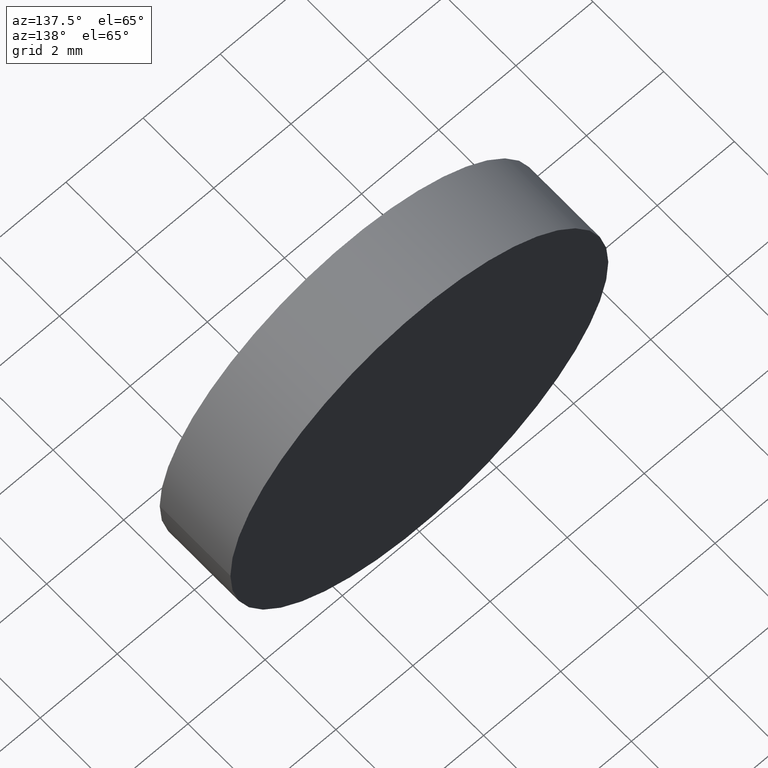
[diagram: clean part render]
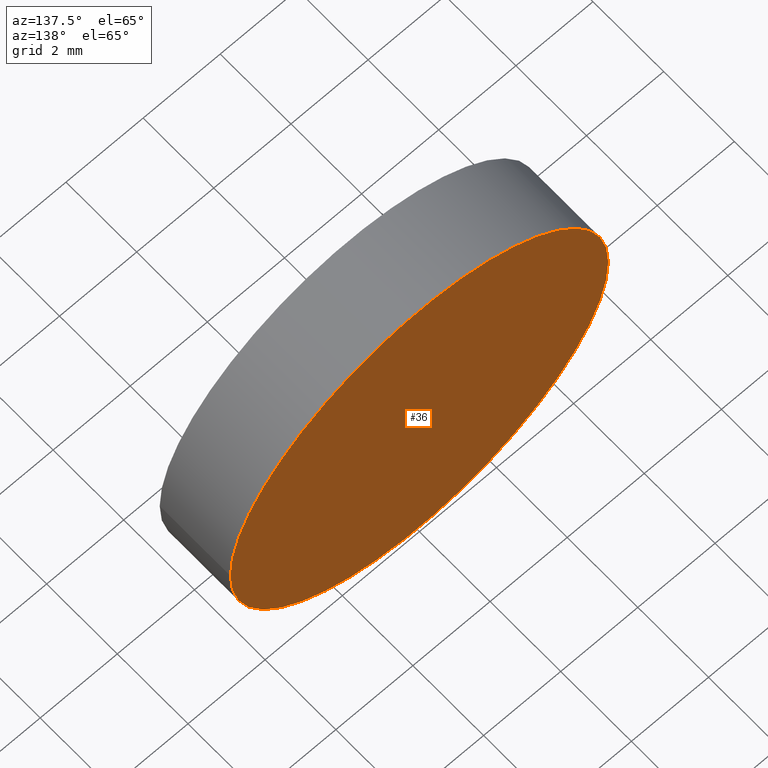
[diagram: same view with one face highlighted and labeled with its STEP entity id]
A machine part, auxiliary view. The second image highlights one B-rep face of the part: STEP entity #36.
In plain terms, the highlighted planar face has unit normal (-0, 1, 0).
Its self-contained STEP definition (entity closure, byte-faithful):
#17=FACE_OUTER_BOUND('',#20,.T.);
#20=EDGE_LOOP('',(#30));
#24=CIRCLE('',#42,4.9);
#26=VERTEX_POINT('',#60);
#28=EDGE_CURVE('',#26,#26,#24,.T.);
#30=ORIENTED_EDGE('',*,*,#28,.F.);
#34=PLANE('',#41);
#36=ADVANCED_FACE('',(#17),#34,.T.);
#41=AXIS2_PLACEMENT_3D('',#59,#48,#49);
#42=AXIS2_PLACEMENT_3D('',#61,#50,#51);
#48=DIRECTION('center_axis',(-3.06161699786838E-16,1.,0.));
#49=DIRECTION('ref_axis',(0.,0.,1.));
#50=DIRECTION('center_axis',(3.06161699786838E-16,-1.,0.));
#51=DIRECTION('ref_axis',(1.,3.06161699786838E-16,0.));
#59=CARTESIAN_POINT('Origin',(4.9,2.,0.));
#60=CARTESIAN_POINT('',(4.9,2.,0.));
#61=CARTESIAN_POINT('Origin',(-6.12323399573676E-16,2.,0.));